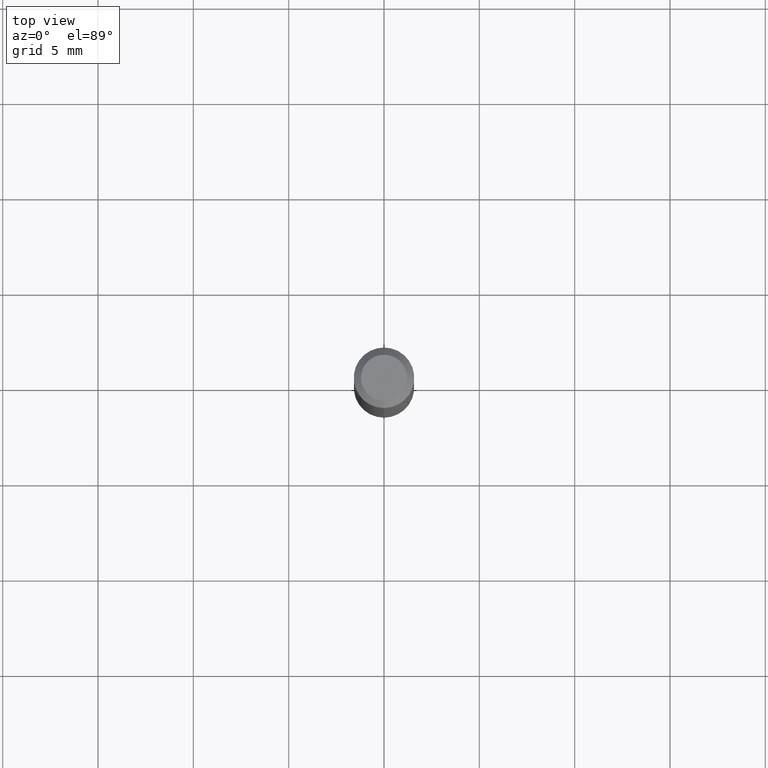
[diagram: clean part render]
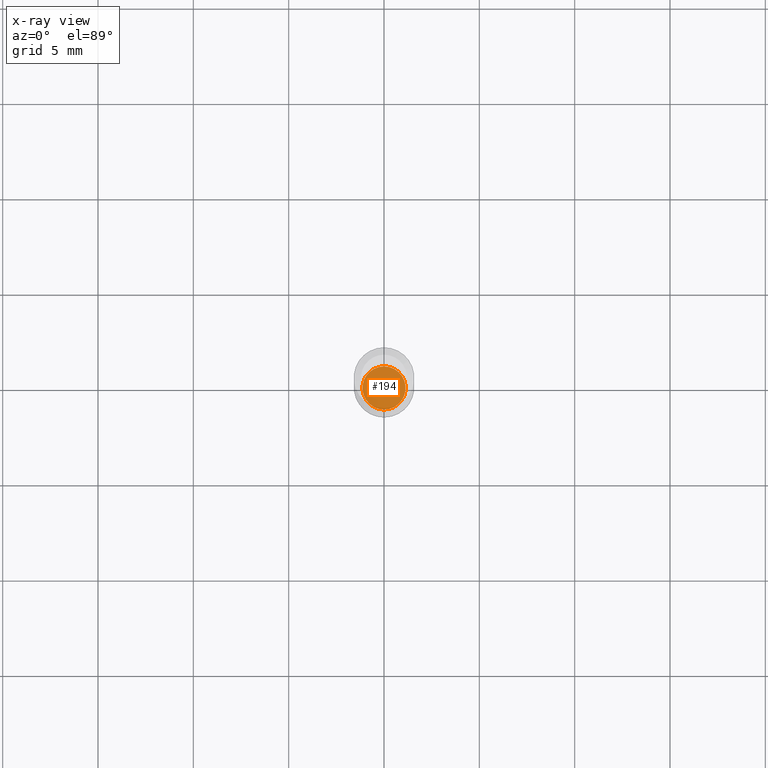
[diagram: x-ray — body ghosted, one internal face saturated and labeled with its STEP entity id]
A machine part, top view, then the same camera in x-ray: the body is ghosted and one INTERNAL B-rep face — a face not visible from any outside direction — is saturated and labeled: STEP entity #194.
In plain terms, the highlighted planar face has unit normal (-0, 0, 1).
Its self-contained STEP definition (entity closure, byte-faithful):
#54 = DIRECTION ( 'NONE',  ( -6.982962677686265922E-15, -1.000000000000000000, 3.069492127712655324E-15 ) ) ;
#92 = FACE_OUTER_BOUND ( 'NONE', #451, .T. ) ;
#102 = AXIS2_PLACEMENT_3D ( 'NONE', #217, #339, #173 ) ;
#141 = AXIS2_PLACEMENT_3D ( 'NONE', #496, #464, #54 ) ;
#149 = DIRECTION ( 'NONE',  ( -6.982962677686265922E-15, -1.000000000000000000, 3.069492127712655324E-15 ) ) ;
#173 = DIRECTION ( 'NONE',  ( -6.982962677686265922E-15, -1.000000000000000000, 3.491478545366656192E-15 ) ) ;
#194 = ADVANCED_FACE ( 'NONE', ( #92 ), #300, .F. ) ;
#217 = CARTESIAN_POINT ( 'NONE',  ( 3.007929030936992806E-29, -4.294518610800986950E-15, -1.230000000000000204 ) ) ;
#225 = CIRCLE ( 'NONE', #430, 0.04449999999999999789 ) ;
#230 = VERTEX_POINT ( 'NONE', #461 ) ;
#252 = EDGE_CURVE ( 'NONE', #323, #230, #358, .T. ) ;
#300 = PLANE ( 'NONE',  #102 ) ;
#323 = VERTEX_POINT ( 'NONE', #394 ) ;
#339 = DIRECTION ( 'NONE',  ( -2.445470756859342783E-29, 3.491478545366656192E-15, 1.000000000000000000 ) ) ;
#343 = CARTESIAN_POINT ( 'NONE',  ( 3.007929030936992806E-29, -4.294518610800986950E-15, -1.230000000000000204 ) ) ;
#358 = CIRCLE ( 'NONE', #141, 0.04449999999999999789 ) ;
#394 = CARTESIAN_POINT ( 'NONE',  ( -3.107418391570087519E-16, -0.04450000000000429307, -1.229999999999999982 ) ) ;
#430 = AXIS2_PLACEMENT_3D ( 'NONE', #343, #506, #149 ) ;
#431 = ORIENTED_EDGE ( 'NONE', *, *, #252, .F. ) ;
#435 = ORIENTED_EDGE ( 'NONE', *, *, #467, .F. ) ;
#451 = EDGE_LOOP ( 'NONE', ( #431, #435 ) ) ;
#461 = CARTESIAN_POINT ( 'NONE',  ( 3.179678742526750430E-16, 0.04449999999999570272, -1.230000000000000204 ) ) ;
#464 = DIRECTION ( 'NONE',  ( -2.445470756859343624E-29, 3.491478545366655797E-15, 1.000000000000000000 ) ) ;
#467 = EDGE_CURVE ( 'NONE', #230, #323, #225, .T. ) ;
#496 = CARTESIAN_POINT ( 'NONE',  ( 3.007929030936992806E-29, -4.294518610800986950E-15, -1.230000000000000204 ) ) ;
#506 = DIRECTION ( 'NONE',  ( -2.445470756859343624E-29, 3.491478545366655797E-15, 1.000000000000000000 ) ) ;